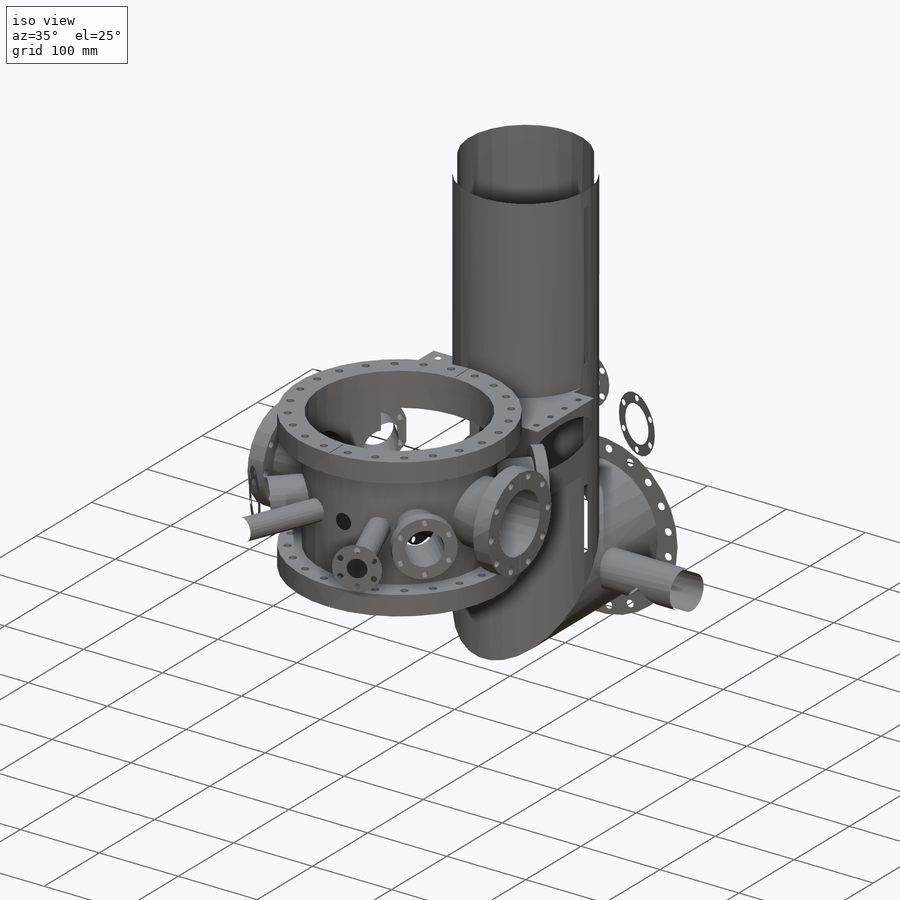
[diagram: iso view]
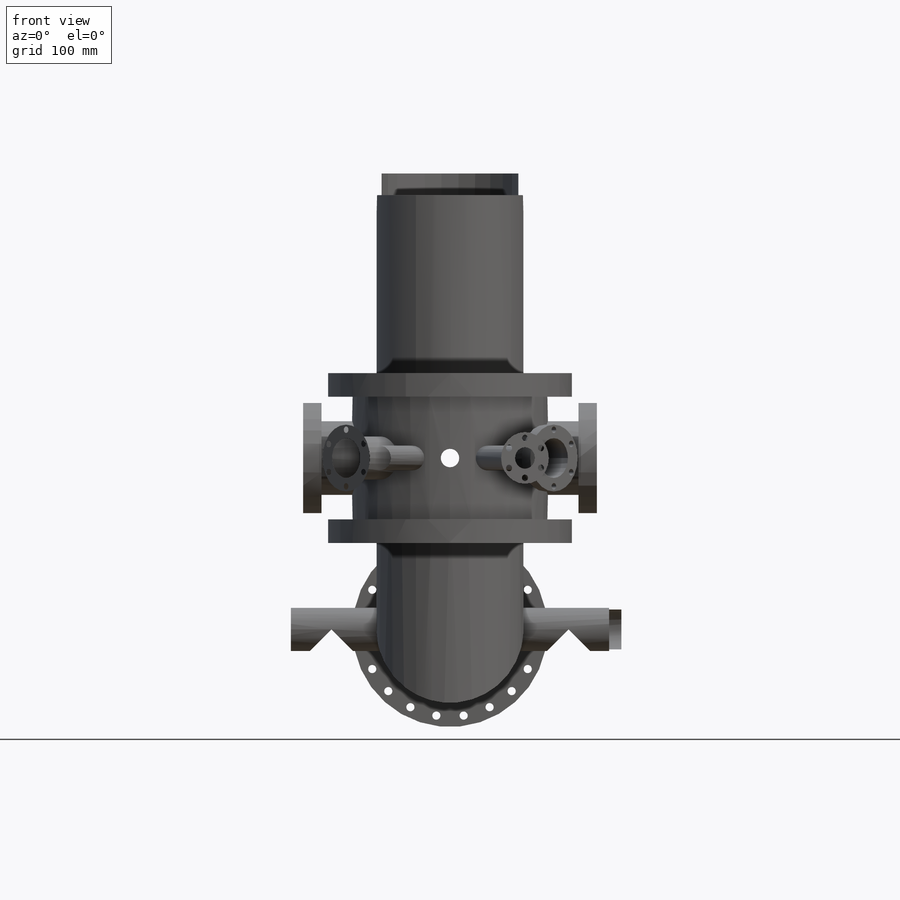
[diagram: front view]
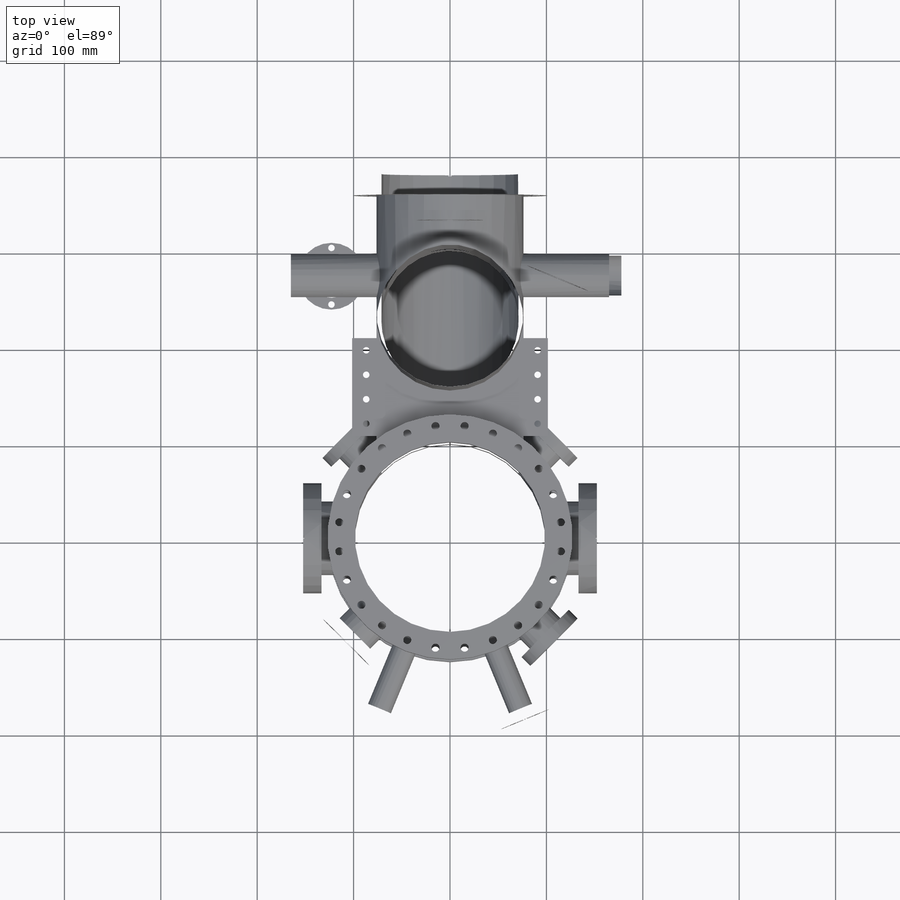
[diagram: top view]
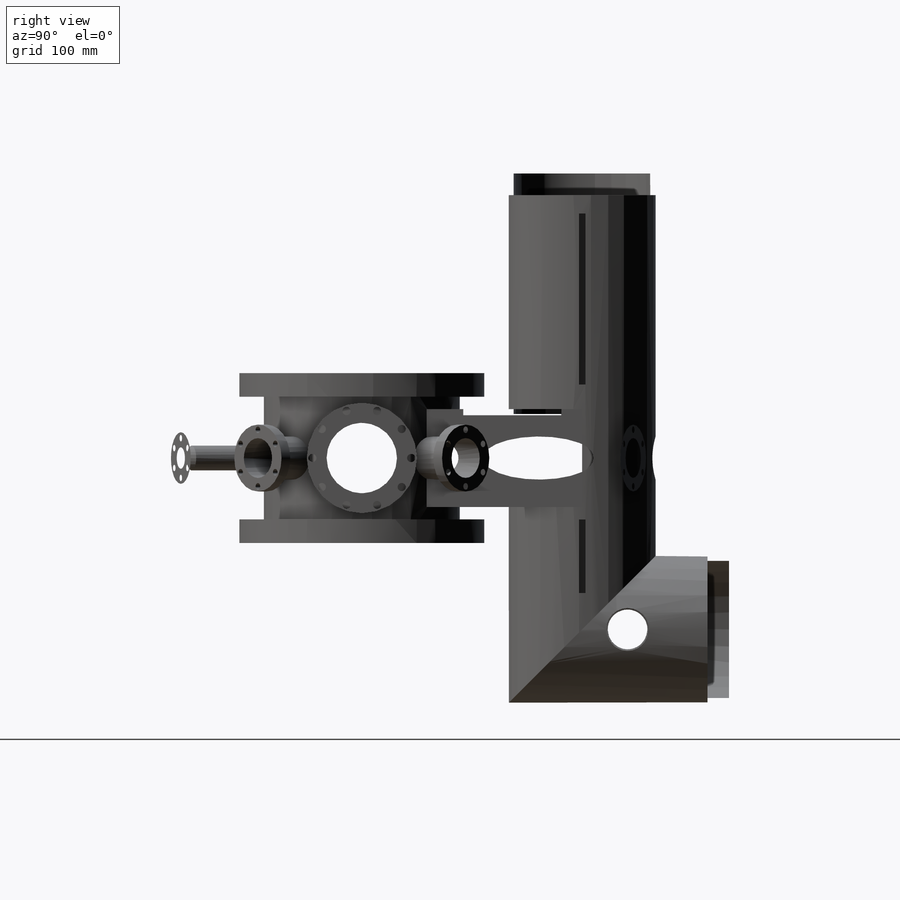
[diagram: right view]
SOLIDWORKS PART (.sldprt)
format: sldprt  version: not decoded by parser v0  size: 2,128,896 bytes
history: native  units: mm
features: sketch x84, extrude x31, cut_extrude x31, plane x22, pattern_circular x13, mirror x10, hole x6, pattern_linear x4, material x1 + 2 further entries (+25 scaffold rows collapsed; 15 parser-record rows omitted)
feature tree (244):
  scaffold x25  (default folders/planes/origin — collapsed)
  material  "Wrought Stainless Steel"
  "Annotations"  RD1=6.35mm RD2=6.35mm
  sketch  "Sketch107"  dims[c1.D1=~262.834337mm c2.D1=90.0deg]
  "Slower Axis"
  plane  "Slower Plane"
  plane  "Slower perpendicular plane"
  plane  "45 degree plane"
  plane  "2nd 45 degree plane"
  plane  "22.5 degree plane"
  sketch  "Main_Chamber_Cylinder_Cross_Section"  dims[D1=~37.064296mm]
  parser-record x15  (decoder bookkeeping rows leaked as tree rows — omitted from the tree; the rows remain in map.json)
  sketch  "Main_Chamber_Cylinder_Height"  dims[D1=~173.149286mm]
  extrude  "Main_Chamber_Cylinder"  [1 undecoded]
  sketch  "Sketch1"
  sketch  "Sketch2"
  sketch  "Sketch21"  dims[c1.D1=~186.033225mm c1.D2=~113.294846mm c2.D1=203.2mm]
  extrude  "Extrude2"  Depth=24.5mm
  sketch  "Sketch5"  dims[D1=50.8mm D2=1.5875mm D3=~101.650013mm]
  cut_extrude  "Extrude3"  Depth=1.016mm
  hole  "Hole5"  Diameter=8.4mm Depth=24.501mm
  sketch  "3DSketch5"  dims[c1.D1=~227.578337mm c2.D1=7.5deg c2.D2=115.9256mm]
  sketch  "Sketch9"  dims[Diameter=8.4mm Depth=24.501mm]
  pattern_circular  "CirPattern7"  Count=24 Angle=360deg
  sketch  "Sketch22"  dims[c1.D1=~186.033225mm c1.D2=~113.294846mm c2.D1=203.2mm]
  extrude  "Extrude21"  Depth=24.5mm
  sketch  "Sketch51"  dims[D1=50.8mm D2=1.5875mm D3=~101.650013mm]
  cut_extrude  "Extrude31"  Depth=1.016mm
  hole  "Hole51"  Diameter=8.4mm Depth=24.501mm
  sketch  "3DSketch51"  dims[c1.D1=~227.578337mm c2.D1=7.5deg c2.D2=115.9256mm]
  sketch  "Sketch91"  dims[Diameter=8.4mm Depth=24.501mm]
  pattern_circular  "CirPattern71"  Count=24 Angle=360deg
  plane  "Plane1"  Offset=241.3mm
  sketch  "Sketch92"  dims[D1=76.2mm D2=5.08mm]
  extrude  "Extrude32"  [1 undecoded]
  sketch  "Sketch93"
  cut_extrude  "Extrude33"  [1 undecoded]
  sketch  "Sketch94"
  sketch  "Sketch23"  dims[D1=~152.000001mm D2=76.2mm]
  extrude  "Extrude22"  Depth=20mm
  sketch  "Sketch52"  dims[c1.D1=127.0mm c1.D2=1.5875mm c1.D3=50.8mm c2.D1=~152.000001mm]
  cut_extrude  "Extrude35"  Depth=1.016mm
  sketch  "Sketch8"  dims[c1.D3=8.4mm c1.D1=~73.057068mm c2.D1=11.25deg c2.D2=65.15mm]
  cut_extrude  "Extrude4"  [1 undecoded]
  pattern_circular  "CirPattern1"  Count=16 Angle=360deg
  mirror  "Mirror2"
  sketch  "Sketch95"
  sketch  "Sketch24"  dims[D1=~152.000001mm D2=76.2mm]
  extrude  "Extrude23"  Depth=20mm
  sketch  "Sketch53"  dims[c1.D1=127.0mm c1.D2=1.5875mm c1.D3=50.8mm c2.D1=~152.000001mm]
  cut_extrude  "Extrude36"  Depth=1.016mm
  sketch  "Sketch81"  dims[c1.D3=8.4mm c1.D1=~73.057068mm c2.D1=11.25deg c2.D2=65.15mm]
  cut_extrude  "Extrude41"  [1 undecoded]
  pattern_circular  "CirPattern11"  Count=16 Angle=360deg
  plane  "Camera illumination port plane"  Offset=152.4mm
  sketch  "Sketch100"  dims[D1=76.454mm]
  extrude  "Extrude46"  [1 undecoded]
  sketch  "Sketch101"  dims[c1.D1=~76.642105mm c1.D2=~101.602253mm c2.D1=5.08mm]
  cut_extrude  "Extrude47"  [1 undecoded]
  sketch  "Sketch142"  dims[D1=114.3mm]
  extrude  "Extrude430"  Depth=19.05mm
  sketch  "Sketch143"  dims[c1.D1=8.4328mm c1.D2=51.181mm c1.D3=51.181mm c2.D3=18.0deg]
  cut_extrude  "Extrude431"  Depth=19.05mm
  pattern_circular  "CirPattern76"  Count=10 Angle=360deg
  sketch  "Sketch180"  dims[D1=2.54mm]
  cut_extrude  "Extrude453"  Depth=1.27mm
  plane  "Plane5"  Offset=152.4mm
  sketch  "Sketch102"  dims[D1=70.3mm]
  extrude  "Extrude48"  [1 undecoded]
  sketch  "Sketch103"  dims[D1=66.0mm]
  cut_extrude  "Extrude49"  [1 undecoded]
  sketch  "Sketch113"  dims[D1=66.0mm]
  extrude  "Extrude411"  Depth=19.9898mm
  sketch  "Sketch141"  dims[D1=117.348mm]
  mirror  "Camera Port CF 4-5/8"
  sketch  "Sketch115"  dims[D1=25.4mm]
  cut_extrude  "Extrude412"  [1 undecoded]
  mirror  "Mirror3"
  plane  "MOT Port plane"  Offset=152.4mm
  sketch  "Sketch124"  dims[D1=41.275mm D2=44.704mm]
  extrude  "Extrude413"  [1 undecoded]
  sketch  "Sketch125"
  cut_extrude  "Extrude414"  [1 undecoded]
  sketch  "Sketch126"  dims[D1=69.342mm]
  extrude  "Extrude415"  Depth=12.7mm
  sketch  "Sketch128"  dims[D2=6.731mm D1=29.3624mm]
  cut_extrude  "Extrude416"  Depth=25.4mm
  pattern_circular  "CirPattern72"  Count=6 Angle=360deg
  mirror  "MOT Port 2 CF 2-3/4"
  mirror  "MOT Port 3 and 4 CF 2-3/4"
  plane  "Plane2"  Offset=228.6mm
  sketch  "Sketch96"  dims[D1=101.6mm D2=152.4mm]
  extrude  "Extrude42"  [1 undecoded]
  plane  "TiSub Port Plane"  Offset=207mm
  sketch  "Sketch98"  dims[D1=5.08mm]
  extrude  "Extrude44"  Depth=609.6mm
  sketch  "Sketch99"  dims[D1=5.08mm]
  cut_extrude  "Extrude45"  Depth=711.2mm
  sketch  "3DSketch52"
  sketch  "Sketch106"  dims[D1=5.08mm D2=5.08mm D3=5.08mm D4=5.08mm]
  cut_extrude  "Extrude50"  [1 undecoded]
  plane  "Plane10"  Offset=203.2mm
  sketch  "Sketch146"  dims[c1.D1=~373.536741mm c2.D1=45.0deg c2.D2=254.0mm]
  cut_extrude  "Elbow angle cut"  [1 undecoded]
  sketch  "Sketch144"  dims[D1=202.438mm]
  extrude  "Extrude432"  Depth=22.352mm
  sketch  "Sketch145"  dims[D2=8.4328mm D1=90.5256mm]
  cut_extrude  "Extrude433"  [1 undecoded]
  pattern_circular  "CirPattern77"  Count=20 Angle=360deg
  plane  "Extra Port Plane"  Offset=203.2mm
  sketch  "Sketch129"  dims[D1=22.225mm D2=25.654mm]
  extrude  "Extrude417"  [1 undecoded]
  sketch  "Sketch130"
  cut_extrude  "Extrude418"  [1 undecoded]
  sketch  "Sketch131"  dims[D1=53.594mm]
  extrude  "Extrude419"  Depth=11.938mm
  sketch  "Sketch132"  dims[D2=6.731mm D1=20.6375mm]
  cut_extrude  "Extrude420"  Depth=12.7mm
  pattern_circular  "CirPattern73"  Count=6 Angle=360deg
  plane  "Facing Extra Port Plane"  Offset=304.8mm
  sketch  "Sketch133"  dims[D1=44.704mm D2=41.275mm]
  extrude  "Extrude421"  [1 undecoded]
  sketch  "Sketch134"  dims[D1=69.342mm]
  extrude  "Extrude422"  Depth=12.7mm
  sketch  "Sketch135"  dims[D2=6.731mm D1=29.3624mm]
  cut_extrude  "Extrude423"  Depth=25.4mm
  pattern_circular  "CirPattern74"  Count=6 Angle=360deg
  sketch  "Sketch136"
  cut_extrude  "Extrude424"  [1 undecoded]
  mirror  "Mirror8"
  mirror  "Extra Port 2"
  plane  "Ion Pump Plane"  Offset=381mm
  sketch  "Sketch147"
  extrude  "Extrude435"  [1 undecoded]
  sketch  "Sketch148"  dims[D1=202.438mm]
  extrude  "Extrude436"  Depth=22.352mm
  sketch  "Sketch149"  dims[c1.D1=8.4328mm c1.D2=90.5256mm c1.D3=~128.447082mm c2.D3=9.0deg]
  cut_extrude  "Extrude437"  Depth=22.352mm
  pattern_circular  "CirPattern78"  Count=20 Angle=360deg
  plane  "Plane7"  Offset=212.852mm
  sketch  "Sketch108"  dims[D1=19.05mm]
  extrude  "Extrude51"  [1 undecoded]
  sketch  "Sketch109"  dims[D1=17.272mm]
  cut_extrude  "Extrude52"  [1 undecoded]
  plane  "Slower Light port plane"  Offset=342.9mm
  sketch  "Sketch137"  dims[D1=41.275mm D2=44.704mm]
  extrude  "Extrude425"  [1 undecoded]
  sketch  "Sketch138"  dims[D1=69.342mm]
  extrude  "Extrude426"  Depth=12.7mm
  sketch  "Sketch139"
  cut_extrude  "Extrude427"  [1 undecoded]
  sketch  "Sketch140"  dims[D2=6.731mm D1=29.3624mm]
  cut_extrude  "Extrude428"  [1 undecoded]
  pattern_circular  "CirPattern75"  Count=6 Angle=360deg
  plane  "Turbo Flange Plane"  Offset=177.8mm
  sketch  "Sketch150"  dims[c1.D1=41.275mm c1.D2=44.704mm c2.D1=49.276mm]
  extrude  "Extrude438"  [1 undecoded]
  sketch  "Sketch151"
  cut_extrude  "Extrude439"  [1 undecoded]
  sketch  "Sketch152"  dims[D1=69.342mm]
  extrude  "Extrude440"  Depth=12.7mm
  sketch  "Sketch153"  dims[D1=6.731mm D2=29.3624mm]
  cut_extrude  "Extrude441"  Depth=12.7mm
  pattern_circular  "CirPattern79"  Count=6 Angle=360deg
  plane  "Turbo Flane 2 Plane"  Offset=228.6mm
  sketch  "Sketch154"  dims[D1=44.704mm D2=41.275mm]
  extrude  "Extrude442"  [1 undecoded]
  sketch  "Sketch155"  dims[D1=41.275mm]
  cut_extrude  "Extrude443"  [1 undecoded]
  sketch  "Sketch156"  dims[D1=69.342mm]
  extrude  "Extrude444"  Depth=12.7mm
  sketch  "Sketch157"  dims[D1=6.731mm D2=29.3624mm]
  cut_extrude  "Extrude445"  Depth=12.7mm
  pattern_circular  "CirPattern80"  Count=6 Angle=360deg
  mirror  "Mirror9"
  sketch  "Sketch159"  dims[D1=0.0deg D2=2.54mm]
  cut_extrude  "Extrude446"  Depth=1.27mm
  plane  "Plane11"  Offset=304.8mm
  sketch  "Sketch160"  dims[D1=25.4mm D2=25.4mm D3=6.35mm D4=6.35mm D5=152.4mm]
  sketch  "Sketch166"
  plane  "Plane12"  Offset=101.6mm
  sketch  "Sketch169"  dims[D1=6.35mm D2=177.8mm D3=19.05mm D4=6.35mm D5=76.2mm D6=139.7mm]
  extrude  "Extrude450"  [1 undecoded]
  hole  "1/4 Clearance Hole2"  Diameter=6.7564mm Depth=25.4mm
  sketch  "Sketch171"  dims[D1=177.8mm D2=12.7mm]
  sketch  "Sketch170"  dims[hole-wizard template sketch: 50 standard entries collapsed; hole parameters above]
  mirror  "Mirror18"
  pattern_linear  "LPattern1"  Count1=7 Count2=2 Spacing1=25.4mm Spacing2=177.8mm
  hole  "1/4 Clearance Hole3"  Diameter=6.7564mm Depth=12.7mm
  sketch  "Sketch173"  dims[D1=12.7mm]
  sketch  "Sketch172"  dims[hole-wizard template sketch: 50 standard entries collapsed; hole parameters above]
  pattern_linear  "LPattern2"  Count1=3 Count2=2 Spacing1=25.4mm Spacing2=177.8mm
  sketch  "Sketch174"  dims[D1=6.35mm D2=38.1mm D3=101.6mm]
  extrude  "Extrude451"  Depth=25.4mm
  mirror  "Mirror19"
  hole  "1/4 Clearance Hole4"  Diameter=6.7564mm Depth=12.7mm
  sketch  "Sketch176"  dims[D1=88.9mm D2=12.7mm]
  sketch  "Sketch175"  dims[hole-wizard template sketch: 50 standard entries collapsed; hole parameters above]
  pattern_linear  "LPattern3"  Count1=4 Count2=2 Spacing1=25.4mm Spacing2=177.8mm
  plane  "Plane13"  Offset=165.1mm
  sketch  "Sketch177"  dims[D1=6.35mm D2=101.6mm]
  extrude  "Extrude452"  [1 undecoded]
  hole  "1/4 Clearance Hole5"  Diameter=6.7564mm Depth=12.7mm
  sketch  "Sketch179"  dims[D1=12.7mm D2=12.7mm]
  sketch  "Sketch178"  dims[hole-wizard template sketch: 50 standard entries collapsed; hole parameters above]
  pattern_linear  "LPattern4"  Count1=4 Count2=2 Spacing1=25.4mm Spacing2=25.4mm
decode coverage: 124 of 179 modeling features carry decoded parameters; 2 rows unclassified (native names shown)
note: ~ marks probable driven/reference dimensions
note: 32 parameter values undecoded
summary: no parameter record found for 32 features; Diameter pulled from absorbed wizard sketch
note: suppression state not decoded; provenance and decode notes live in map.json
